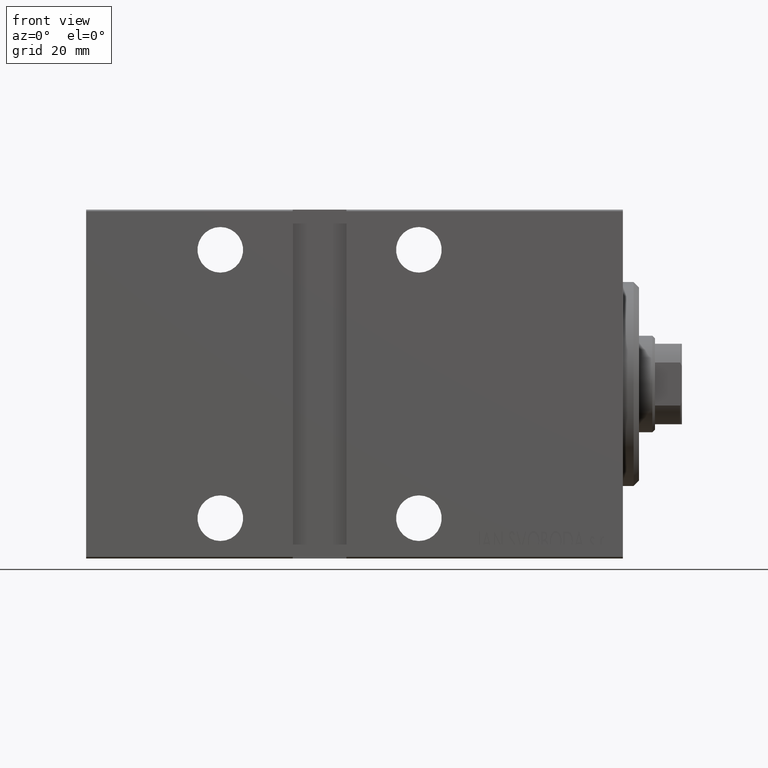
[diagram: clean part render]
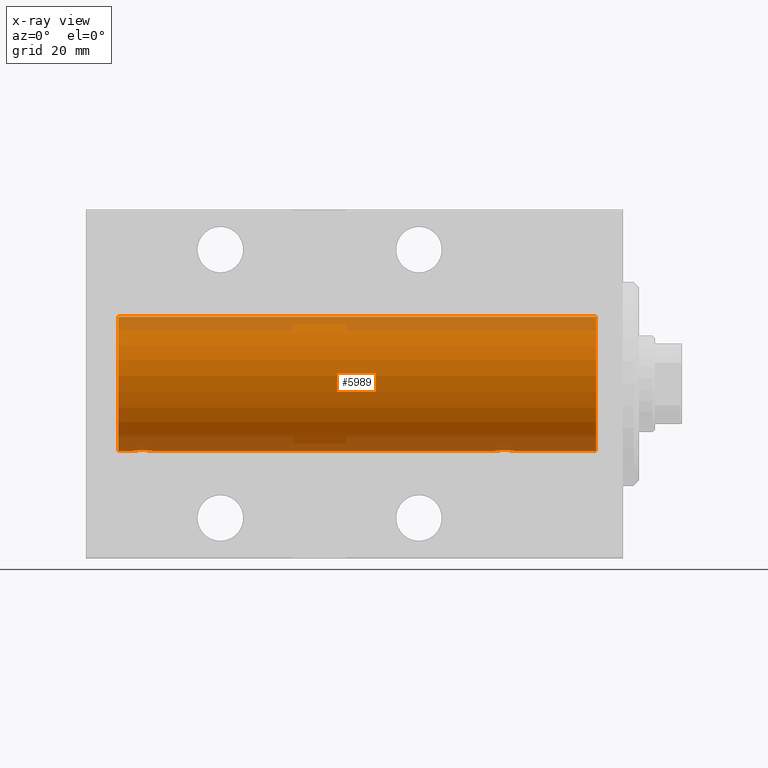
[diagram: x-ray — body ghosted, one internal face saturated and labeled with its STEP entity id]
A machine part, front view, then the same camera in x-ray: the body is ghosted and one INTERNAL B-rep face — a face not visible from any outside direction — is saturated and labeled: STEP entity #5989.
In plain terms, the highlighted cylindrical surface (partial cylindrical patch) has radius 12.5 mm, axis along (1, 0, -0).
Its self-contained STEP definition (entity closure, byte-faithful):
#1463 = DIRECTION ( 'NONE',  ( -1.000000000000000000, 0.000000000000000000, 0.000000000000000000 ) ) ;
#1784 = ORIENTED_EDGE ( 'NONE', *, *, #16613, .T. ) ;
#1943 = DIRECTION ( 'NONE',  ( -1.000000000000000000, -0.000000000000000000, -0.000000000000000000 ) ) ;
#2339 = CARTESIAN_POINT ( 'NONE',  ( 19.99999999999999645, 0.1323736289504319763, -12.50000000000000000 ) ) ;
#2502 = DIRECTION ( 'NONE',  ( -1.000000000000000000, -0.000000000000000000, -0.000000000000000000 ) ) ;
#3004 = CARTESIAN_POINT ( 'NONE',  ( 87.99398366327214660, 1.322451657002059910, -12.43019346654085666 ) ) ;
#3210 = CARTESIAN_POINT ( 'NONE',  ( 87.50000000000002842, 0.1323736289504252872, -12.50000000000000178 ) ) ;
#3653 = CARTESIAN_POINT ( 'NONE',  ( 90.38656313533020636, 1.797558627508987428, -12.37018026341339016 ) ) ;
#5832 = CARTESIAN_POINT ( 'NONE',  ( 24.00000000000000000, 1.530808426277417854E-15, -12.50000000000000000 ) ) ;
#5859 = CARTESIAN_POINT ( 'NONE',  ( 94.00000000000000000, 0.000000000000000000, 0.000000000000000000 ) ) ;
#5989 = ADVANCED_FACE ( 'NONE', ( #38438 ), #9138, .F. ) ;
#6050 = CARTESIAN_POINT ( 'NONE',  ( 23.93561774521849728, 0.5201193324741352209, -12.48983485452574982 ) ) ;
#6268 = CARTESIAN_POINT ( 'NONE',  ( 23.89773031393658087, 0.6448065707253023415, -12.48394649977302073 ) ) ;
#6708 = CARTESIAN_POINT ( 'NONE',  ( 91.08991408680633128, 1.220297236145713393, -12.44076681548080821 ) ) ;
#8246 = VECTOR ( 'NONE', #42777, 1000.000000000000000 ) ;
#8895 = AXIS2_PLACEMENT_3D ( 'NONE', #35426, #19030, #35247 ) ;
#9138 = CYLINDRICAL_SURFACE ( 'NONE', #13685, 12.50000000000000000 ) ;
#9544 = CARTESIAN_POINT ( 'NONE',  ( 23.50733550364322255, 1.321095788880538136, -12.43034574091277911 ) ) ;
#9760 = CARTESIAN_POINT ( 'NONE',  ( 22.64415233770293412, 1.897967064543090165, -12.35517291625592051 ) ) ;
#9774 = DIRECTION ( 'NONE',  ( -1.000000000000000000, -0.000000000000000000, -0.000000000000000000 ) ) ;
#9776 = CARTESIAN_POINT ( 'NONE',  ( 91.00733550364326163, 1.321095788880530364, -12.43034574091278444 ) ) ;
#9984 = CARTESIAN_POINT ( 'NONE',  ( 87.60252270298197175, 0.6455696738844840521, -12.48390768591463384 ) ) ;
#10191 = CARTESIAN_POINT ( 'NONE',  ( 90.01937350851557085, 1.935814255713560472, -12.34922241902463114 ) ) ;
#10213 = EDGE_CURVE ( 'NONE', #28001, #42624, #28984, .T. ) ;
#10407 = CARTESIAN_POINT ( 'NONE',  ( 91.50000000000002842, 1.530808426270318106E-15, -12.50000000000000000 ) ) ;
#10619 = CARTESIAN_POINT ( 'NONE',  ( 90.82102833500701422, 1.507394620545632336, -12.40913174964213539 ) ) ;
#11536 = VERTEX_POINT ( 'NONE', #19467 ) ;
#12164 = CARTESIAN_POINT ( 'NONE',  ( 19.99999999999999645, -3.966047509268588167E-15, -12.50000000000000000 ) ) ;
#12384 = CARTESIAN_POINT ( 'NONE',  ( 20.06395648222636652, 0.5184196815546032733, -12.48990118705761532 ) ) ;
#12597 = CARTESIAN_POINT ( 'NONE',  ( 23.58991408680628155, 1.220297236145721609, -12.44076681548080288 ) ) ;
#12809 = CARTESIAN_POINT ( 'NONE',  ( 22.88656313533016373, 1.797558627508998086, -12.37018026341338839 ) ) ;
#13020 = CARTESIAN_POINT ( 'NONE',  ( 22.12992629360264729, 2.000049200055402210, -12.33895470450623044 ) ) ;
#13470 = CARTESIAN_POINT ( 'NONE',  ( 90.14415233770294833, 1.897967064543078619, -12.35517291625592051 ) ) ;
#13684 = VECTOR ( 'NONE', #9774, 1000.000000000000000 ) ;
#13685 = AXIS2_PLACEMENT_3D ( 'NONE', #5859, #1943, #15266 ) ;
#13859 = ORIENTED_EDGE ( 'NONE', *, *, #14267, .F. ) ;
#14091 = CIRCLE ( 'NONE', #37101, 12.50000000000000000 ) ;
#14149 = VERTEX_POINT ( 'NONE', #37284 ) ;
#14267 = EDGE_CURVE ( 'NONE', #11536, #16576, #26779, .T. ) ;
#14343 = DIRECTION ( 'NONE',  ( 0.000000000000000000, 0.000000000000000000, 1.000000000000000000 ) ) ;
#15266 = DIRECTION ( 'NONE',  ( 0.000000000000000000, 0.000000000000000000, 1.000000000000000000 ) ) ;
#16530 = CARTESIAN_POINT ( 'NONE',  ( 91.39773031393660574, 0.6448065707252970125, -12.48394649977302429 ) ) ;
#16576 = VERTEX_POINT ( 'NONE', #26003 ) ;
#16613 = EDGE_CURVE ( 'NONE', #23932, #16576, #17239, .T. ) ;
#16908 = CARTESIAN_POINT ( 'NONE',  ( 94.00000000000000000, 0.000000000000000000, 12.50000000000000000 ) ) ;
#17239 = CIRCLE ( 'NONE', #8895, 12.50000000000000000 ) ;
#19030 = DIRECTION ( 'NONE',  ( -1.000000000000000000, 0.000000000000000000, 0.000000000000000000 ) ) ;
#19073 = LINE ( 'NONE', #31968, #25867 ) ;
#19381 = CARTESIAN_POINT ( 'NONE',  ( 24.00000000000000711, 0.1306394121199392910, -12.50000000000000533 ) ) ;
#19467 = CARTESIAN_POINT ( 'NONE',  ( 19.99999999999999645, -3.966047509268588167E-15, -12.50000000000000000 ) ) ;
#19550 = EDGE_CURVE ( 'NONE', #30821, #23932, #36407, .T. ) ;
#19606 = CARTESIAN_POINT ( 'NONE',  ( 91.29742491916158542, 0.8868029758979329991, -12.46909283808506430 ) ) ;
#19799 = CARTESIAN_POINT ( 'NONE',  ( 23.73470742397611843, 1.003863686549172352, -12.46009879577771606 ) ) ;
#19815 = EDGE_CURVE ( 'NONE', #28001, #14149, #32651, .T. ) ;
#20031 = CARTESIAN_POINT ( 'NONE',  ( 91.23470742397611843, 1.003863686549164580, -12.46009879577771073 ) ) ;
#21362 = CARTESIAN_POINT ( 'NONE',  ( 87.50000000000002842, -8.176262823880599614E-15, -12.50000000000000000 ) ) ;
#22424 = CARTESIAN_POINT ( 'NONE',  ( 21.47436412829510033, 1.947190906025044077, -12.34781876294798053 ) ) ;
#22853 = CARTESIAN_POINT ( 'NONE',  ( 20.49398366327207910, 1.322451657002076120, -12.43019346654084956 ) ) ;
#23067 = CARTESIAN_POINT ( 'NONE',  ( 23.00335814299181436, 1.734998657226765939, -12.37922086519035325 ) ) ;
#23505 = CARTESIAN_POINT ( 'NONE',  ( 94.00000000000000000, 1.530808498934191521E-15, -12.50000000000000000 ) ) ;
#23509 = CARTESIAN_POINT ( 'NONE',  ( 91.50000000000005684, 0.1306394121199379033, -12.50000000000000355 ) ) ;
#23729 = CARTESIAN_POINT ( 'NONE',  ( 87.70300788371382339, 0.8876934327478049891, -12.46903010196599659 ) ) ;
#23871 = ORIENTED_EDGE ( 'NONE', *, *, #37752, .T. ) ;
#23932 = VERTEX_POINT ( 'NONE', #38631 ) ;
#23940 = CARTESIAN_POINT ( 'NONE',  ( 89.62992629360266506, 2.000049200055388443, -12.33895470450623044 ) ) ;
#25650 = CARTESIAN_POINT ( 'NONE',  ( 94.00000000000000000, 1.530808498934191521E-15, -12.50000000000000000 ) ) ;
#25702 = CARTESIAN_POINT ( 'NONE',  ( 20.20300788371381273, 0.8876934327478117615, -12.46903010196599304 ) ) ;
#25867 = VECTOR ( 'NONE', #42477, 1000.000000000000000 ) ;
#25914 = CARTESIAN_POINT ( 'NONE',  ( 23.79742491916155700, 0.8868029758979399935, -12.46909283808506430 ) ) ;
#26003 = CARTESIAN_POINT ( 'NONE',  ( 5.000000000000004441, 1.530808498934191521E-15, -12.50000000000000000 ) ) ;
#26124 = CARTESIAN_POINT ( 'NONE',  ( 23.21980790594580313, 1.590288205413975309, -12.39864157855465088 ) ) ;
#26567 = CARTESIAN_POINT ( 'NONE',  ( 89.76269462454600045, 1.986986967296526352, -12.34109209020653530 ) ) ;
#26779 = LINE ( 'NONE', #23505, #13684 ) ;
#26781 = CARTESIAN_POINT ( 'NONE',  ( 90.50335814299187120, 1.734998657226755947, -12.37922086519035858 ) ) ;
#26999 = CARTESIAN_POINT ( 'NONE',  ( 88.49316879552503678, 1.747608771958125473, -12.37764291807175709 ) ) ;
#27210 = CARTESIAN_POINT ( 'NONE',  ( 87.50000000000002842, -8.176262823880599614E-15, -12.50000000000000000 ) ) ;
#27220 = CARTESIAN_POINT ( 'NONE',  ( 94.00000000000000000, 0.000000000000000000, 0.000000000000000000 ) ) ;
#27228 = EDGE_LOOP ( 'NONE', ( #40220, #30205, #30611, #1784, #13859, #23871, #31443, #42298 ) ) ;
#28001 = VERTEX_POINT ( 'NONE', #21362 ) ;
#28984 = B_SPLINE_CURVE_WITH_KNOTS ( 'NONE', 3,
 ( #27210, #3210, #43224, #33370, #9984, #23729, #30509, #32931, #3004, #29640, #26999, #40572, #36634, #23940, #26567, #10191, #13470, #3653, #26781, #39711, #10619, #9776, #6708, #20031, #19606, #16530, #40138, #29861, #23509, #10407 ),
 .UNSPECIFIED., .F., .F.,
 ( 4, 2, 2, 2, 2, 2, 2, 2, 2, 2, 2, 2, 2, 2, 4 ),
 ( 1.893746017792005895E-18, 0.0003914362731607732410, 0.0007828725463215445305, 0.001174308819482315983, 0.001565745092643087326, 0.002348617638964600740, 0.003131490185286113937, 0.003522926458446871186, 0.003914362731607627134, 0.004305799004768384383, 0.004697235277929140765, 0.005088671551089898014, 0.005480107824250654396, 0.005871544097411410777, 0.006262980370572168026 ),
 .UNSPECIFIED. ) ;
#29199 = CARTESIAN_POINT ( 'NONE',  ( 20.01301208516349206, 0.2624928479599882847, -12.49789934882883458 ) ) ;
#29414 = CARTESIAN_POINT ( 'NONE',  ( 20.40963319990594016, 1.219754986802279451, -12.44082361696003503 ) ) ;
#29640 = CARTESIAN_POINT ( 'NONE',  ( 88.27033506126853979, 1.598680238462352188, -12.39873273758732175 ) ) ;
#29702 = B_SPLINE_CURVE_WITH_KNOTS ( 'NONE', 3,
 ( #12164, #2339, #29199, #12384, #35980, #25702, #39477, #29414, #22853, #39058, #42776, #22424, #35768, #13020, #32913, #39695, #9760, #12809, #23067, #26124, #32704, #9544, #12597, #19799, #25914, #6268, #6050, #36406, #19381, #5832 ),
 .UNSPECIFIED., .F., .F.,
 ( 4, 2, 2, 2, 2, 2, 2, 2, 2, 2, 2, 2, 2, 2, 4 ),
 ( 3.611342868676865251E-19, 0.0003914362731607586585, 0.0007828725463215168833, 0.001174308819482275217, 0.001565745092643033550, 0.002348617638964549999, 0.003131490185286066666, 0.003522926458446830420, 0.003914362731607594174, 0.004305799004768357495, 0.004697235277929121683, 0.005088671551089885003, 0.005480107824250649191, 0.005871544097411412512, 0.006262980370572176700 ),
 .UNSPECIFIED. ) ;
#29861 = CARTESIAN_POINT ( 'NONE',  ( 91.48690384766258887, 0.2633501011236116240, -12.49788564268284041 ) ) ;
#30205 = ORIENTED_EDGE ( 'NONE', *, *, #38855, .F. ) ;
#30509 = CARTESIAN_POINT ( 'NONE',  ( 87.76446744561867774, 1.002494658017143658, -12.46021263690097136 ) ) ;
#30611 = ORIENTED_EDGE ( 'NONE', *, *, #19550, .T. ) ;
#30821 = VERTEX_POINT ( 'NONE', #16908 ) ;
#31089 = EDGE_CURVE ( 'NONE', #42869, #42624, #19073, .T. ) ;
#31284 = VECTOR ( 'NONE', #2502, 1000.000000000000000 ) ;
#31443 = ORIENTED_EDGE ( 'NONE', *, *, #19815, .F. ) ;
#31968 = CARTESIAN_POINT ( 'NONE',  ( 94.00000000000000000, 1.530808498934191521E-15, -12.50000000000000000 ) ) ;
#32651 = LINE ( 'NONE', #25650, #31284 ) ;
#32704 = CARTESIAN_POINT ( 'NONE',  ( 23.32102833500698225, 1.507394620545640773, -12.40913174964213184 ) ) ;
#32913 = CARTESIAN_POINT ( 'NONE',  ( 22.26269462454597914, 1.986986967296540119, -12.34109209020652465 ) ) ;
#32931 = CARTESIAN_POINT ( 'NONE',  ( 87.90963319990596858, 1.219754986802266128, -12.44082361696003503 ) ) ;
#33370 = CARTESIAN_POINT ( 'NONE',  ( 87.56395648222640204, 0.5184196815545968340, -12.48990118705761354 ) ) ;
#35247 = DIRECTION ( 'NONE',  ( 0.000000000000000000, 0.000000000000000000, 1.000000000000000000 ) ) ;
#35426 = CARTESIAN_POINT ( 'NONE',  ( 5.000000000000004441, 0.000000000000000000, 0.000000000000000000 ) ) ;
#35768 = CARTESIAN_POINT ( 'NONE',  ( 21.73788193668374902, 1.999901172190678533, -12.33897869807161385 ) ) ;
#35980 = CARTESIAN_POINT ( 'NONE',  ( 20.10252270298193622, 0.6455696738844897142, -12.48390768591463207 ) ) ;
#36108 = CARTESIAN_POINT ( 'NONE',  ( 94.00000000000000000, 1.530808498934191521E-15, -12.50000000000000000 ) ) ;
#36406 = CARTESIAN_POINT ( 'NONE',  ( 23.98690384766256400, 0.2633501011236120681, -12.49788564268284041 ) ) ;
#36407 = LINE ( 'NONE', #39059, #8246 ) ;
#36634 = CARTESIAN_POINT ( 'NONE',  ( 89.23788193668380586, 1.999901172190666765, -12.33897869807161385 ) ) ;
#37101 = AXIS2_PLACEMENT_3D ( 'NONE', #27220, #1463, #14343 ) ;
#37284 = CARTESIAN_POINT ( 'NONE',  ( 24.00000000000000000, 1.530808426277417854E-15, -12.50000000000000000 ) ) ;
#37752 = EDGE_CURVE ( 'NONE', #11536, #14149, #29702, .T. ) ;
#38438 = FACE_OUTER_BOUND ( 'NONE', #27228, .T. ) ;
#38631 = CARTESIAN_POINT ( 'NONE',  ( 5.000000000000004441, 0.000000000000000000, 12.50000000000000000 ) ) ;
#38855 = EDGE_CURVE ( 'NONE', #30821, #42869, #14091, .T. ) ;
#39058 = CARTESIAN_POINT ( 'NONE',  ( 20.77033506126850426, 1.598680238462369951, -12.39873273758732175 ) ) ;
#39059 = CARTESIAN_POINT ( 'NONE',  ( 94.00000000000000000, 0.000000000000000000, 12.50000000000000000 ) ) ;
#39477 = CARTESIAN_POINT ( 'NONE',  ( 20.26446744561862801, 1.002494658017155871, -12.46021263690096958 ) ) ;
#39695 = CARTESIAN_POINT ( 'NONE',  ( 22.51937350851555308, 1.935814255713574905, -12.34922241902463114 ) ) ;
#39707 = CARTESIAN_POINT ( 'NONE',  ( 91.50000000000002842, 1.530808426270318106E-15, -12.50000000000000000 ) ) ;
#39711 = CARTESIAN_POINT ( 'NONE',  ( 90.71980790594582800, 1.590288205413965539, -12.39864157855464732 ) ) ;
#40138 = CARTESIAN_POINT ( 'NONE',  ( 91.43561774521855057, 0.5201193324741325563, -12.48983485452575337 ) ) ;
#40220 = ORIENTED_EDGE ( 'NONE', *, *, #31089, .F. ) ;
#40572 = CARTESIAN_POINT ( 'NONE',  ( 88.97436412829512165, 1.947190906025030976, -12.34781876294798408 ) ) ;
#42298 = ORIENTED_EDGE ( 'NONE', *, *, #10213, .T. ) ;
#42477 = DIRECTION ( 'NONE',  ( -1.000000000000000000, -0.000000000000000000, -0.000000000000000000 ) ) ;
#42624 = VERTEX_POINT ( 'NONE', #39707 ) ;
#42776 = CARTESIAN_POINT ( 'NONE',  ( 20.99316879552500481, 1.747608771958139906, -12.37764291807175354 ) ) ;
#42777 = DIRECTION ( 'NONE',  ( -1.000000000000000000, -0.000000000000000000, -0.000000000000000000 ) ) ;
#42869 = VERTEX_POINT ( 'NONE', #36108 ) ;
#43224 = CARTESIAN_POINT ( 'NONE',  ( 87.51301208516352403, 0.2624928479599822340, -12.49789934882883458 ) ) ;